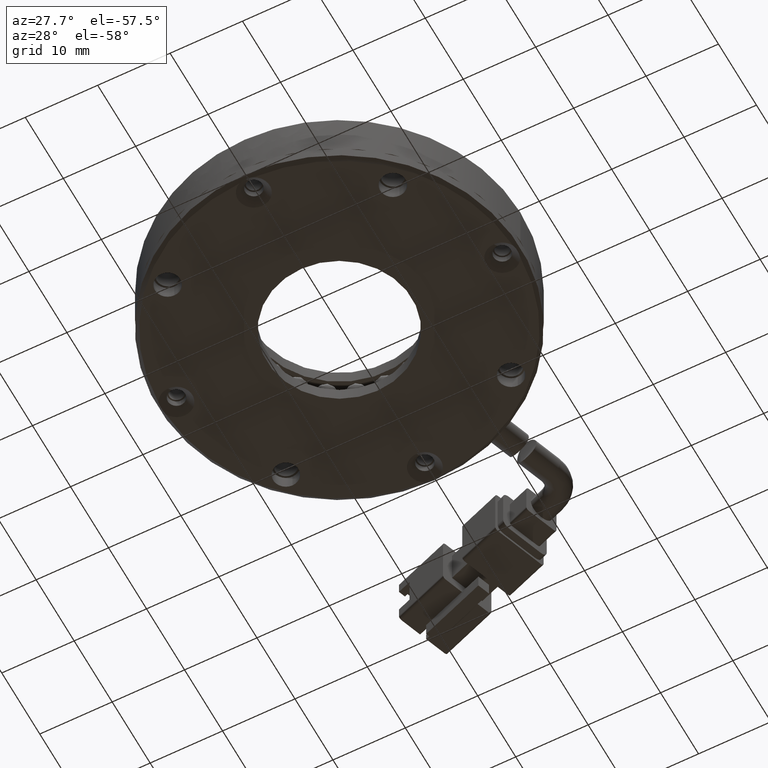
[diagram: clean part render]
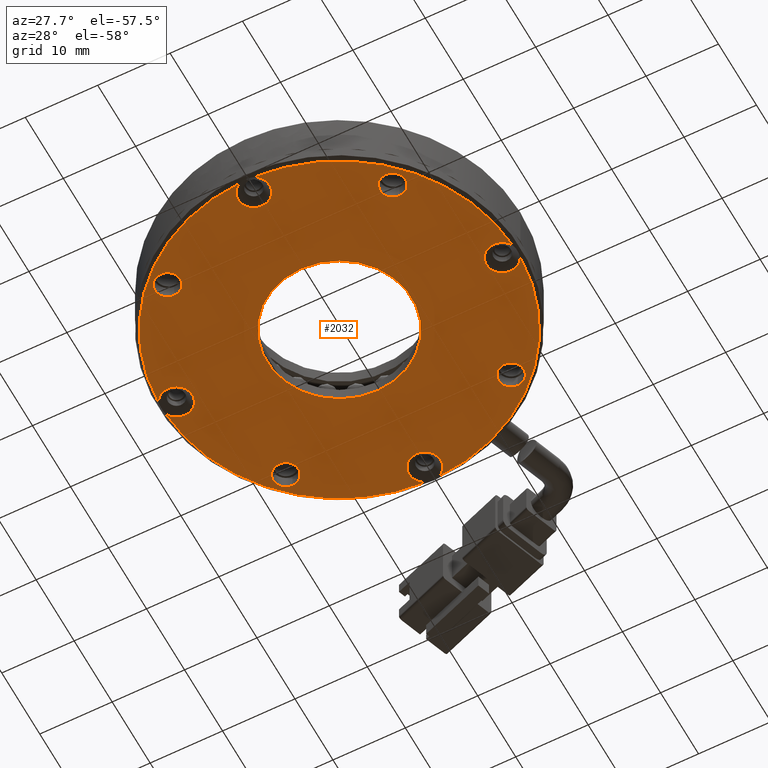
[diagram: same view with one face highlighted and labeled with its STEP entity id]
A machine part, auxiliary view. The second image highlights one B-rep face of the part: STEP entity #2032.
In plain terms, the highlighted planar face has unit normal (-0, -0, -1).
Its self-contained STEP definition (entity closure, byte-faithful):
#35 = DIRECTION ( 'NONE',  ( -1.278084676573917700E-047, -7.983674700015282600E-110, -1.000000000000000000 ) ) ;
#291 = CARTESIAN_POINT ( 'NONE',  ( -136.5647436173435400, 23.76707421156868700, -5.499999999999942300 ) ) ;
#584 = AXIS2_PLACEMENT_3D ( 'NONE', #4611, #18902, #6653 ) ;
#648 = CARTESIAN_POINT ( 'NONE',  ( -98.50839443123941000, 4.260725025448540900, -5.500000000009490200 ) ) ;
#676 = VERTEX_POINT ( 'NONE', #16571 ) ;
#693 = CARTESIAN_POINT ( 'NONE',  ( -121.0083944312394000, 6.460725025464729900, -5.499999999999940500 ) ) ;
#748 = CARTESIAN_POINT ( 'NONE',  ( -105.4520452451353800, 20.26707421156880800, -5.499999999999942300 ) ) ;
#818 = CIRCLE ( 'NONE', #10963, 2.199999999979808300 ) ;
#914 = DIRECTION ( 'NONE',  ( -1.278084676573917400E-047, -0.0000000000000000000, -1.000000000000000000 ) ) ;
#1035 = ORIENTED_EDGE ( 'NONE', *, *, #7553, .T. ) ;
#1096 = CARTESIAN_POINT ( 'NONE',  ( -105.4520452451351500, -9.095624160639122400, -5.499999999999942300 ) ) ;
#1151 = ORIENTED_EDGE ( 'NONE', *, *, #13206, .T. ) ;
#1157 = CARTESIAN_POINT ( 'NONE',  ( -136.5647436173433100, -7.345624160639461700, -5.499999999999942300 ) ) ;
#1159 = CARTESIAN_POINT ( 'NONE',  ( -121.0083944312394000, 6.460725025464729900, -5.499999999999940500 ) ) ;
#1274 = CARTESIAN_POINT ( 'NONE',  ( -136.5647436173433100, -9.095624160639456300, -5.499999999999942300 ) ) ;
#1333 = CIRCLE ( 'NONE', #10330, 2.200000000016348400 ) ;
#1420 = DIRECTION ( 'NONE',  ( 1.278084676573917400E-047, -0.0000000000000000000, 1.000000000000000000 ) ) ;
#1449 = DIRECTION ( 'NONE',  ( 1.278084676573917400E-047, -0.0000000000000000000, 1.000000000000000000 ) ) ;
#1473 = CIRCLE ( 'NONE', #16089, 1.749999999999992900 ) ;
#1596 = DIRECTION ( 'NONE',  ( 1.278084676573917400E-047, -0.0000000000000000000, 1.000000000000000000 ) ) ;
#1828 = VERTEX_POINT ( 'NONE', #25214 ) ;
#2032 = ADVANCED_FACE ( 'NONE', ( #3743, #19386, #24761, #8530, #3097, #24140 ), #22181, .T. ) ;
#2138 = AXIS2_PLACEMENT_3D ( 'NONE', #4856, #19145, #6897 ) ;
#2144 = VERTEX_POINT ( 'NONE', #21700 ) ;
#2440 = CARTESIAN_POINT ( 'NONE',  ( -143.5083944312394000, 4.260725025448221200, -5.500000000009490200 ) ) ;
#2663 = VERTEX_POINT ( 'NONE', #11927 ) ;
#2749 = DIRECTION ( 'NONE',  ( 0.0000000000000000000, -1.000000000000000000, 0.0000000000000000000 ) ) ;
#2883 = CIRCLE ( 'NONE', #15667, 1.749999999999994700 ) ;
#2938 = VERTEX_POINT ( 'NONE', #8310 ) ;
#2966 = AXIS2_PLACEMENT_3D ( 'NONE', #13837, #1596, #15878 ) ;
#2993 = ORIENTED_EDGE ( 'NONE', *, *, #8839, .T. ) ;
#3023 = AXIS2_PLACEMENT_3D ( 'NONE', #1159, #15425, #3221 ) ;
#3097 = FACE_BOUND ( 'NONE', #7018, .T. ) ;
#3145 = DIRECTION ( 'NONE',  ( 0.0000000000000000000, 1.000000000000000000, 0.0000000000000000000 ) ) ;
#3170 = CIRCLE ( 'NONE', #3856, 1.749999999999994700 ) ;
#3221 = DIRECTION ( 'NONE',  ( 0.0000000000000000000, -1.000000000000000000, 0.0000000000000000000 ) ) ;
#3314 = DIRECTION ( 'NONE',  ( 1.278084676573917400E-047, -0.0000000000000000000, 1.000000000000000000 ) ) ;
#3342 = DIRECTION ( 'NONE',  ( 0.0000000000000000000, 1.000000000000000000, 0.0000000000000000000 ) ) ;
#3690 = CARTESIAN_POINT ( 'NONE',  ( -121.0083944312394800, 28.96072502546472200, -5.500000000009490200 ) ) ;
#3743 = FACE_BOUND ( 'NONE', #7956, .T. ) ;
#3826 = CIRCLE ( 'NONE', #15223, 10.00000000000000000 ) ;
#3855 = CIRCLE ( 'NONE', #4779, 2.200000000016348400 ) ;
#3856 = AXIS2_PLACEMENT_3D ( 'NONE', #19718, #7471, #21772 ) ;
#4344 = EDGE_CURVE ( 'NONE', #17787, #9206, #3826, .T. ) ;
#4556 = ORIENTED_EDGE ( 'NONE', *, *, #25703, .T. ) ;
#4611 = CARTESIAN_POINT ( 'NONE',  ( -121.0083944312394800, 28.96072502546472200, -5.500000000009490200 ) ) ;
#4615 = VERTEX_POINT ( 'NONE', #21749 ) ;
#4779 = AXIS2_PLACEMENT_3D ( 'NONE', #20487, #8288, #22554 ) ;
#4815 = VERTEX_POINT ( 'NONE', #14854 ) ;
#4826 = CARTESIAN_POINT ( 'NONE',  ( -120.0521945452011900, 30.94205835878457100, -5.500000000021927300 ) ) ;
#4856 = CARTESIAN_POINT ( 'NONE',  ( -98.50839443123941000, 6.460725025464729900, -5.500000000009490200 ) ) ;
#5460 = DIRECTION ( 'NONE',  ( 1.278084676573917400E-047, -0.0000000000000000000, 1.000000000000000000 ) ) ;
#5461 = ORIENTED_EDGE ( 'NONE', *, *, #7281, .T. ) ;
#5617 = CIRCLE ( 'NONE', #10304, 1.749999999999994700 ) ;
#5741 = DIRECTION ( 'NONE',  ( 0.0000000000000000000, 1.000000000000000000, 0.0000000000000000000 ) ) ;
#5785 = ORIENTED_EDGE ( 'NONE', *, *, #8522, .T. ) ;
#5830 = ORIENTED_EDGE ( 'NONE', *, *, #18763, .T. ) ;
#5860 = DIRECTION ( 'NONE',  ( -1.278084676573917400E-047, -0.0000000000000000000, -1.000000000000000000 ) ) ;
#5983 = AXIS2_PLACEMENT_3D ( 'NONE', #21257, #9060, #23297 ) ;
#6302 = CARTESIAN_POINT ( 'NONE',  ( -105.4520452451353800, 22.01707421156880100, -5.499999999999942300 ) ) ;
#6439 = ORIENTED_EDGE ( 'NONE', *, *, #4344, .T. ) ;
#6449 = EDGE_CURVE ( 'NONE', #4615, #676, #9212, .T. ) ;
#6653 = DIRECTION ( 'NONE',  ( -6.308085367363610600E-015, 1.000000000000000000, 0.0000000000000000000 ) ) ;
#6897 = DIRECTION ( 'NONE',  ( 0.0000000000000000000, 1.000000000000000000, 0.0000000000000000000 ) ) ;
#6943 = VERTEX_POINT ( 'NONE', #26112 ) ;
#7018 = EDGE_LOOP ( 'NONE', ( #20733, #13128 ) ) ;
#7281 = EDGE_CURVE ( 'NONE', #15609, #2938, #1473, .T. ) ;
#7411 = ORIENTED_EDGE ( 'NONE', *, *, #15623, .T. ) ;
#7471 = DIRECTION ( 'NONE',  ( 1.278084676573917400E-047, -0.0000000000000000000, 1.000000000000000000 ) ) ;
#7493 = ORIENTED_EDGE ( 'NONE', *, *, #20774, .T. ) ;
#7516 = VERTEX_POINT ( 'NONE', #4826 ) ;
#7553 = EDGE_CURVE ( 'NONE', #2938, #15609, #13269, .T. ) ;
#7799 = EDGE_CURVE ( 'NONE', #26038, #1828, #23434, .T. ) ;
#7919 = CARTESIAN_POINT ( 'NONE',  ( -121.9645943172761400, 30.94205835878498300, -5.500000000021581800 ) ) ;
#7948 = AXIS2_PLACEMENT_3D ( 'NONE', #13663, #1420, #15699 ) ;
#7951 = CIRCLE ( 'NONE', #7948, 2.200000000016189000 ) ;
#7956 = EDGE_LOOP ( 'NONE', ( #13465, #6439 ) ) ;
#8288 = DIRECTION ( 'NONE',  ( 1.278084676573917400E-047, -0.0000000000000000000, 1.000000000000000000 ) ) ;
#8310 = CARTESIAN_POINT ( 'NONE',  ( -105.4520452451351500, -10.84562416063911500, -5.499999999999942300 ) ) ;
#8351 = VERTEX_POINT ( 'NONE', #7919 ) ;
#8354 = CIRCLE ( 'NONE', #13677, 2.200000000016348400 ) ;
#8367 = DIRECTION ( 'NONE',  ( 0.0000000000000000000, 1.000000000000000000, 0.0000000000000000000 ) ) ;
#8405 = CARTESIAN_POINT ( 'NONE',  ( -96.52706109790560200, 5.504525139319234500, -5.500000000003801400 ) ) ;
#8522 = EDGE_CURVE ( 'NONE', #2663, #18061, #25557, .T. ) ;
#8530 = FACE_BOUND ( 'NONE', #16670, .T. ) ;
#8580 = CARTESIAN_POINT ( 'NONE',  ( -98.50839443123941000, 6.460725025464729900, -5.500000000009490200 ) ) ;
#8585 = CIRCLE ( 'NONE', #17191, 2.199999999938889900 ) ;
#8839 = EDGE_CURVE ( 'NONE', #25543, #14733, #3855, .T. ) ;
#9060 = DIRECTION ( 'NONE',  ( 1.278084676573917400E-047, -0.0000000000000000000, 1.000000000000000000 ) ) ;
#9146 = EDGE_CURVE ( 'NONE', #14906, #20345, #22001, .T. ) ;
#9206 = VERTEX_POINT ( 'NONE', #11732 ) ;
#9212 = CIRCLE ( 'NONE', #15164, 24.49999999999999300 ) ;
#9345 = EDGE_LOOP ( 'NONE', ( #5785, #26115 ) ) ;
#9471 = VERTEX_POINT ( 'NONE', #648 ) ;
#9484 = AXIS2_PLACEMENT_3D ( 'NONE', #13149, #914, #15186 ) ;
#9507 = DIRECTION ( 'NONE',  ( 1.278084676573917400E-047, -0.0000000000000000000, 1.000000000000000000 ) ) ;
#9925 = ORIENTED_EDGE ( 'NONE', *, *, #16890, .T. ) ;
#10086 = CARTESIAN_POINT ( 'NONE',  ( -121.0083944312394000, 6.460725025464729900, -5.499999999999940500 ) ) ;
#10209 = ORIENTED_EDGE ( 'NONE', *, *, #11052, .T. ) ;
#10304 = AXIS2_PLACEMENT_3D ( 'NONE', #1274, #15552, #3342 ) ;
#10306 = ORIENTED_EDGE ( 'NONE', *, *, #6449, .T. ) ;
#10330 = AXIS2_PLACEMENT_3D ( 'NONE', #17687, #5460, #19740 ) ;
#10608 = DIRECTION ( 'NONE',  ( 0.0000000000000000000, 1.000000000000000000, 0.0000000000000000000 ) ) ;
#10947 = AXIS2_PLACEMENT_3D ( 'NONE', #1096, #15353, #3145 ) ;
#10963 = AXIS2_PLACEMENT_3D ( 'NONE', #11457, #25676, #13506 ) ;
#11052 = EDGE_CURVE ( 'NONE', #6943, #7516, #8585, .T. ) ;
#11154 = CARTESIAN_POINT ( 'NONE',  ( -105.4520452451351500, -9.095624160639122400, -5.499999999999942300 ) ) ;
#11429 = VERTEX_POINT ( 'NONE', #21128 ) ;
#11457 = CARTESIAN_POINT ( 'NONE',  ( -121.0083944312391500, -16.03927497453527100, -5.500000000066333600 ) ) ;
#11568 = CARTESIAN_POINT ( 'NONE',  ( -105.4520452451353800, 22.01707421156880100, -5.499999999999942300 ) ) ;
#11732 = CARTESIAN_POINT ( 'NONE',  ( -121.0083944312394000, -3.539274974535270500, -5.499999999999940500 ) ) ;
#11927 = CARTESIAN_POINT ( 'NONE',  ( -105.4520452451353800, 23.76707421156879700, -5.499999999999942300 ) ) ;
#12133 = DIRECTION ( 'NONE',  ( -1.699320956058913600E-015, -1.000000000000000000, 0.0000000000000000000 ) ) ;
#12514 = CIRCLE ( 'NONE', #5983, 2.199999999979808300 ) ;
#12621 = EDGE_LOOP ( 'NONE', ( #14445, #5830, #7411, #9925, #23309, #4556, #23607, #10306, #1151, #2993, #7493, #25035, #20169, #10209 ) ) ;
#13025 = EDGE_CURVE ( 'NONE', #4815, #4615, #12514, .T. ) ;
#13061 = ORIENTED_EDGE ( 'NONE', *, *, #18717, .T. ) ;
#13107 = VERTEX_POINT ( 'NONE', #21448 ) ;
#13128 = ORIENTED_EDGE ( 'NONE', *, *, #21238, .T. ) ;
#13149 = CARTESIAN_POINT ( 'NONE',  ( -121.0083944312394000, 6.460725025464729900, -5.499999999999936900 ) ) ;
#13184 = CIRCLE ( 'NONE', #19238, 1.749999999999994700 ) ;
#13206 = EDGE_CURVE ( 'NONE', #676, #25543, #8354, .T. ) ;
#13215 = DIRECTION ( 'NONE',  ( 0.0000000000000000000, 1.000000000000000000, 0.0000000000000000000 ) ) ;
#13269 = CIRCLE ( 'NONE', #10947, 1.749999999999992900 ) ;
#13465 = ORIENTED_EDGE ( 'NONE', *, *, #26403, .T. ) ;
#13506 = DIRECTION ( 'NONE',  ( 0.0000000000000000000, 1.000000000000000000, 0.0000000000000000000 ) ) ;
#13625 = DIRECTION ( 'NONE',  ( 0.0000000000000000000, 1.000000000000000000, 0.0000000000000000000 ) ) ;
#13663 = CARTESIAN_POINT ( 'NONE',  ( -98.50839443123941000, 6.460725025464729900, -5.500000000009490200 ) ) ;
#13677 = AXIS2_PLACEMENT_3D ( 'NONE', #13692, #1449, #15728 ) ;
#13692 = CARTESIAN_POINT ( 'NONE',  ( -143.5083944312394000, 6.460725025464570100, -5.500000000009490200 ) ) ;
#13837 = CARTESIAN_POINT ( 'NONE',  ( -121.0083944312394000, 6.460725025464729900, -5.499999999999940500 ) ) ;
#13915 = CIRCLE ( 'NONE', #3023, 24.49999999999999300 ) ;
#13955 = CARTESIAN_POINT ( 'NONE',  ( -143.5083944312394000, 8.660725025480918000, -5.500000000009490200 ) ) ;
#14141 = ORIENTED_EDGE ( 'NONE', *, *, #9146, .T. ) ;
#14445 = ORIENTED_EDGE ( 'NONE', *, *, #19612, .T. ) ;
#14591 = EDGE_CURVE ( 'NONE', #21660, #13107, #5617, .T. ) ;
#14733 = VERTEX_POINT ( 'NONE', #13955 ) ;
#14854 = CARTESIAN_POINT ( 'NONE',  ( -121.0083944312391500, -13.83927497455546400, -5.500000000066333600 ) ) ;
#14906 = VERTEX_POINT ( 'NONE', #291 ) ;
#14961 = DIRECTION ( 'NONE',  ( 1.278084676573917400E-047, -0.0000000000000000000, 1.000000000000000000 ) ) ;
#15164 = AXIS2_PLACEMENT_3D ( 'NONE', #18077, #5860, #20128 ) ;
#15186 = DIRECTION ( 'NONE',  ( 0.0000000000000000000, -1.000000000000000000, 0.0000000000000000000 ) ) ;
#15223 = AXIS2_PLACEMENT_3D ( 'NONE', #693, #14961, #2749 ) ;
#15353 = DIRECTION ( 'NONE',  ( 1.278084676573917400E-047, -0.0000000000000000000, 1.000000000000000000 ) ) ;
#15425 = DIRECTION ( 'NONE',  ( -1.278084676573917400E-047, -0.0000000000000000000, -1.000000000000000000 ) ) ;
#15527 = CARTESIAN_POINT ( 'NONE',  ( -136.5647436173433100, -9.095624160639456300, -5.499999999999942300 ) ) ;
#15552 = DIRECTION ( 'NONE',  ( 1.278084676573917400E-047, -0.0000000000000000000, 1.000000000000000000 ) ) ;
#15609 = VERTEX_POINT ( 'NONE', #25074 ) ;
#15623 = EDGE_CURVE ( 'NONE', #2144, #9471, #20918, .T. ) ;
#15667 = AXIS2_PLACEMENT_3D ( 'NONE', #15527, #3314, #17580 ) ;
#15699 = DIRECTION ( 'NONE',  ( 6.308085367141970700E-015, 1.000000000000000000, 0.0000000000000000000 ) ) ;
#15728 = DIRECTION ( 'NONE',  ( 0.0000000000000000000, 1.000000000000000000, 0.0000000000000000000 ) ) ;
#15837 = DIRECTION ( 'NONE',  ( -1.278084676573917700E-047, 1.000000000000000000, 1.633500440493055000E-094 ) ) ;
#15878 = DIRECTION ( 'NONE',  ( 0.0000000000000000000, -1.000000000000000000, 0.0000000000000000000 ) ) ;
#16037 = CARTESIAN_POINT ( 'NONE',  ( -121.0083944312394000, 16.46072502546472900, -5.499999999999940500 ) ) ;
#16089 = AXIS2_PLACEMENT_3D ( 'NONE', #11154, #25392, #13215 ) ;
#16135 = AXIS2_PLACEMENT_3D ( 'NONE', #6302, #20570, #8367 ) ;
#16571 = CARTESIAN_POINT ( 'NONE',  ( -145.4897277645734200, 5.504525139319636800, -5.500000000003591800 ) ) ;
#16670 = EDGE_LOOP ( 'NONE', ( #14141, #13061 ) ) ;
#16890 = EDGE_CURVE ( 'NONE', #9471, #26038, #26192, .T. ) ;
#17191 = AXIS2_PLACEMENT_3D ( 'NONE', #3690, #17955, #5741 ) ;
#17303 = AXIS2_PLACEMENT_3D ( 'NONE', #8580, #22836, #10608 ) ;
#17580 = DIRECTION ( 'NONE',  ( 0.0000000000000000000, 1.000000000000000000, 0.0000000000000000000 ) ) ;
#17687 = CARTESIAN_POINT ( 'NONE',  ( -143.5083944312394000, 6.460725025464570100, -5.500000000009490200 ) ) ;
#17787 = VERTEX_POINT ( 'NONE', #16037 ) ;
#17955 = DIRECTION ( 'NONE',  ( 1.278084676573917400E-047, -0.0000000000000000000, 1.000000000000000000 ) ) ;
#18061 = VERTEX_POINT ( 'NONE', #748 ) ;
#18077 = CARTESIAN_POINT ( 'NONE',  ( -121.0083944312394000, 6.460725025464729900, -5.499999999999936900 ) ) ;
#18717 = EDGE_CURVE ( 'NONE', #20345, #14906, #3170, .T. ) ;
#18763 = EDGE_CURVE ( 'NONE', #23978, #2144, #7951, .T. ) ;
#18902 = DIRECTION ( 'NONE',  ( 1.278084676573917400E-047, -0.0000000000000000000, 1.000000000000000000 ) ) ;
#19145 = DIRECTION ( 'NONE',  ( 1.278084676573917400E-047, -0.0000000000000000000, 1.000000000000000000 ) ) ;
#19238 = AXIS2_PLACEMENT_3D ( 'NONE', #11568, #25782, #13625 ) ;
#19386 = FACE_OUTER_BOUND ( 'NONE', #12621, .T. ) ;
#19612 = EDGE_CURVE ( 'NONE', #7516, #23978, #13915, .T. ) ;
#19718 = CARTESIAN_POINT ( 'NONE',  ( -136.5647436173435400, 22.01707421156869400, -5.499999999999942300 ) ) ;
#19740 = DIRECTION ( 'NONE',  ( 0.0000000000000000000, 1.000000000000000000, 0.0000000000000000000 ) ) ;
#19924 = CIRCLE ( 'NONE', #584, 2.199999999938889900 ) ;
#20044 = EDGE_CURVE ( 'NONE', #8351, #6943, #19924, .T. ) ;
#20114 = EDGE_LOOP ( 'NONE', ( #5461, #1035 ) ) ;
#20128 = DIRECTION ( 'NONE',  ( 1.132880637372609100E-015, -1.000000000000000000, 0.0000000000000000000 ) ) ;
#20169 = ORIENTED_EDGE ( 'NONE', *, *, #20044, .T. ) ;
#20242 = EDGE_CURVE ( 'NONE', #18061, #2663, #13184, .T. ) ;
#20345 = VERTEX_POINT ( 'NONE', #26056 ) ;
#20487 = CARTESIAN_POINT ( 'NONE',  ( -143.5083944312394000, 6.460725025464570100, -5.500000000009490200 ) ) ;
#20570 = DIRECTION ( 'NONE',  ( 1.278084676573917400E-047, -0.0000000000000000000, 1.000000000000000000 ) ) ;
#20630 = EDGE_CURVE ( 'NONE', #11429, #8351, #25262, .T. ) ;
#20733 = ORIENTED_EDGE ( 'NONE', *, *, #14591, .T. ) ;
#20774 = EDGE_CURVE ( 'NONE', #14733, #11429, #1333, .T. ) ;
#20918 = CIRCLE ( 'NONE', #2138, 2.200000000016189000 ) ;
#21128 = CARTESIAN_POINT ( 'NONE',  ( -145.4897277645734200, 7.416924911609513900, -5.500000000003594500 ) ) ;
#21238 = EDGE_CURVE ( 'NONE', #13107, #21660, #2883, .T. ) ;
#21257 = CARTESIAN_POINT ( 'NONE',  ( -121.0083944312391500, -16.03927497453527100, -5.500000000066333600 ) ) ;
#21393 = AXIS2_PLACEMENT_3D ( 'NONE', #10086, #24347, #12133 ) ;
#21448 = CARTESIAN_POINT ( 'NONE',  ( -136.5647436173433100, -10.84562416063945100, -5.499999999999942300 ) ) ;
#21660 = VERTEX_POINT ( 'NONE', #1157 ) ;
#21700 = CARTESIAN_POINT ( 'NONE',  ( -98.50839443123941000, 8.660725025480918000, -5.500000000009490200 ) ) ;
#21734 = CARTESIAN_POINT ( 'NONE',  ( -136.5647436173435400, 22.01707421156869400, -5.499999999999942300 ) ) ;
#21749 = CARTESIAN_POINT ( 'NONE',  ( -121.9645943173284600, -18.02060830784898800, -5.500000000056998000 ) ) ;
#21772 = DIRECTION ( 'NONE',  ( 0.0000000000000000000, 1.000000000000000000, 0.0000000000000000000 ) ) ;
#21805 = AXIS2_PLACEMENT_3D ( 'NONE', #24092, #35, #15837 ) ;
#22001 = CIRCLE ( 'NONE', #25617, 1.749999999999994700 ) ;
#22181 = PLANE ( 'NONE',  #21805 ) ;
#22554 = DIRECTION ( 'NONE',  ( 0.0000000000000000000, 1.000000000000000000, 0.0000000000000000000 ) ) ;
#22836 = DIRECTION ( 'NONE',  ( 1.278084676573917400E-047, -0.0000000000000000000, 1.000000000000000000 ) ) ;
#22914 = CIRCLE ( 'NONE', #2966, 10.00000000000000000 ) ;
#23297 = DIRECTION ( 'NONE',  ( 0.0000000000000000000, 1.000000000000000000, 0.0000000000000000000 ) ) ;
#23309 = ORIENTED_EDGE ( 'NONE', *, *, #7799, .T. ) ;
#23434 = CIRCLE ( 'NONE', #21393, 24.49999999999999300 ) ;
#23607 = ORIENTED_EDGE ( 'NONE', *, *, #13025, .T. ) ;
#23678 = CARTESIAN_POINT ( 'NONE',  ( -96.52706109790560200, 7.416924911610252900, -5.500000000003801400 ) ) ;
#23758 = DIRECTION ( 'NONE',  ( 0.0000000000000000000, 1.000000000000000000, 0.0000000000000000000 ) ) ;
#23978 = VERTEX_POINT ( 'NONE', #23678 ) ;
#24092 = CARTESIAN_POINT ( 'NONE',  ( -121.0083944312394000, 6.460725025464729900, -5.499999999999940500 ) ) ;
#24140 = FACE_BOUND ( 'NONE', #20114, .T. ) ;
#24347 = DIRECTION ( 'NONE',  ( -1.278084676573917400E-047, -0.0000000000000000000, -1.000000000000000000 ) ) ;
#24761 = FACE_BOUND ( 'NONE', #9345, .T. ) ;
#25035 = ORIENTED_EDGE ( 'NONE', *, *, #20630, .T. ) ;
#25074 = CARTESIAN_POINT ( 'NONE',  ( -105.4520452451351500, -7.345624160639128600, -5.499999999999942300 ) ) ;
#25214 = CARTESIAN_POINT ( 'NONE',  ( -120.0521945451498200, -18.02060830784896300, -5.500000000056997100 ) ) ;
#25262 = CIRCLE ( 'NONE', #9484, 24.49999999999999300 ) ;
#25392 = DIRECTION ( 'NONE',  ( 1.278084676573917400E-047, -0.0000000000000000000, 1.000000000000000000 ) ) ;
#25543 = VERTEX_POINT ( 'NONE', #2440 ) ;
#25557 = CIRCLE ( 'NONE', #16135, 1.749999999999994700 ) ;
#25617 = AXIS2_PLACEMENT_3D ( 'NONE', #21734, #9507, #23758 ) ;
#25676 = DIRECTION ( 'NONE',  ( 1.278084676573917400E-047, -0.0000000000000000000, 1.000000000000000000 ) ) ;
#25703 = EDGE_CURVE ( 'NONE', #1828, #4815, #818, .T. ) ;
#25782 = DIRECTION ( 'NONE',  ( 1.278084676573917400E-047, -0.0000000000000000000, 1.000000000000000000 ) ) ;
#26038 = VERTEX_POINT ( 'NONE', #8405 ) ;
#26056 = CARTESIAN_POINT ( 'NONE',  ( -136.5647436173435400, 20.26707421156870100, -5.499999999999942300 ) ) ;
#26112 = CARTESIAN_POINT ( 'NONE',  ( -121.0083944312394800, 26.76072502552582900, -5.500000000009490200 ) ) ;
#26115 = ORIENTED_EDGE ( 'NONE', *, *, #20242, .T. ) ;
#26192 = CIRCLE ( 'NONE', #17303, 2.200000000016189000 ) ;
#26403 = EDGE_CURVE ( 'NONE', #9206, #17787, #22914, .T. ) ;